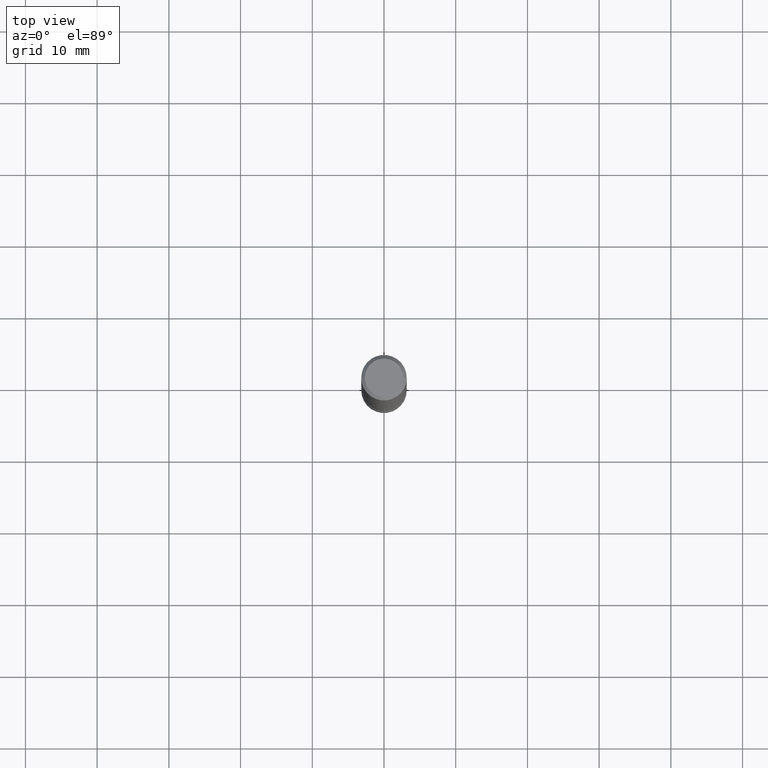
[diagram: clean part render]
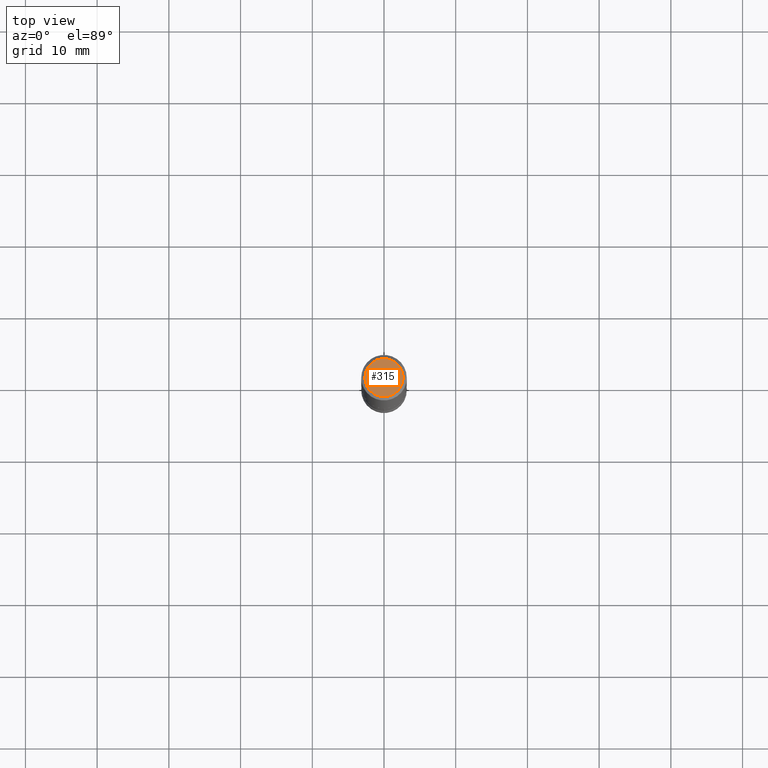
[diagram: same view with one face highlighted and labeled with its STEP entity id]
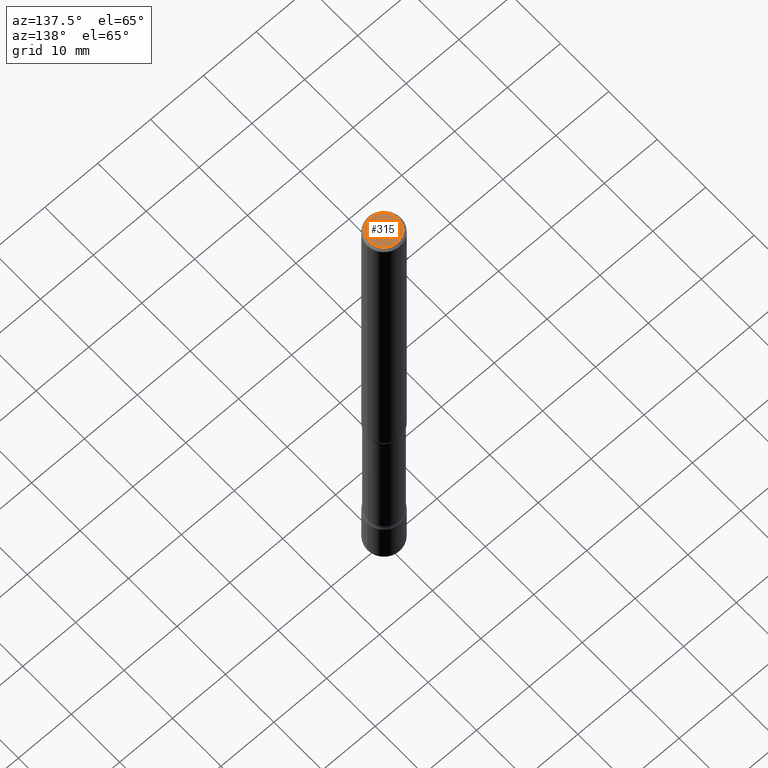
[diagram: same view with one face highlighted and labeled with its STEP entity id]
A machine part, top view. The second image highlights one B-rep face of the part: STEP entity #315.
A second angle (auxiliary view) of the same face is appended — the face is thin or edge-on in the first view.
In plain terms, the highlighted planar face has unit normal (0, -0, -1).
Its self-contained STEP definition (entity closure, byte-faithful):
#104 = CARTESIAN_POINT ( 'NONE',  ( 0.1049999999999996769, -8.238720831321554950E-16, 4.268512490105855498E-18 ) ) ;
#135 = PLANE ( 'NONE',  #232 ) ;
#232 = AXIS2_PLACEMENT_3D ( 'NONE', #516, #322, #326 ) ;
#235 = ORIENTED_EDGE ( 'NONE', *, *, #470, .T. ) ;
#268 = FACE_OUTER_BOUND ( 'NONE', #278, .T. ) ;
#278 = EDGE_LOOP ( 'NONE', ( #669, #235 ) ) ;
#284 = CIRCLE ( 'NONE', #399, 0.1049999999999996769 ) ;
#306 = CIRCLE ( 'NONE', #778, 0.1049999999999996769 ) ;
#315 = ADVANCED_FACE ( 'NONE', ( #268 ), #135, .F. ) ;
#322 = DIRECTION ( 'NONE',  ( 2.438088387897960049E-29, -3.491481338843145188E-15, -1.000000000000000000 ) ) ;
#326 = DIRECTION ( 'NONE',  ( -1.000000000000000000, 6.982962677686265922E-15, -4.876176775795935793E-29 ) ) ;
#349 = VERTEX_POINT ( 'NONE', #104 ) ;
#373 = DIRECTION ( 'NONE',  ( 1.000000000000000000, -6.982962677686267499E-15, 4.876206205277409163E-29 ) ) ;
#399 = AXIS2_PLACEMENT_3D ( 'NONE', #805, #746, #373 ) ;
#406 = CARTESIAN_POINT ( 'NONE',  ( -0.1049999999999996769, 7.681258945454870110E-16, 4.268512490095161194E-18 ) ) ;
#466 = DIRECTION ( 'NONE',  ( -2.445468806185136597E-29, 3.491481338843145583E-15, 1.000000000000000000 ) ) ;
#470 = EDGE_CURVE ( 'NONE', #349, #471, #306, .T. ) ;
#471 = VERTEX_POINT ( 'NONE', #406 ) ;
#500 = EDGE_CURVE ( 'NONE', #471, #349, #284, .T. ) ;
#516 = CARTESIAN_POINT ( 'NONE',  ( 7.332110811570557564E-16, 0.1049999999999996769, -3.644712843334789960E-16 ) ) ;
#669 = ORIENTED_EDGE ( 'NONE', *, *, #500, .T. ) ;
#722 = DIRECTION ( 'NONE',  ( 1.000000000000000000, -6.982962677686267499E-15, 4.876206205277409163E-29 ) ) ;
#746 = DIRECTION ( 'NONE',  ( -2.445468806185136597E-29, 3.491481338843145583E-15, 1.000000000000000000 ) ) ;
#778 = AXIS2_PLACEMENT_3D ( 'NONE', #780, #466, #722 ) ;
#780 = CARTESIAN_POINT ( 'NONE',  ( -1.043851414335219820E-46, 1.490343170380447200E-32, 4.268512490100411279E-18 ) ) ;
#805 = CARTESIAN_POINT ( 'NONE',  ( -1.043851414335219820E-46, 1.490343170380447200E-32, 4.268512490100411279E-18 ) ) ;